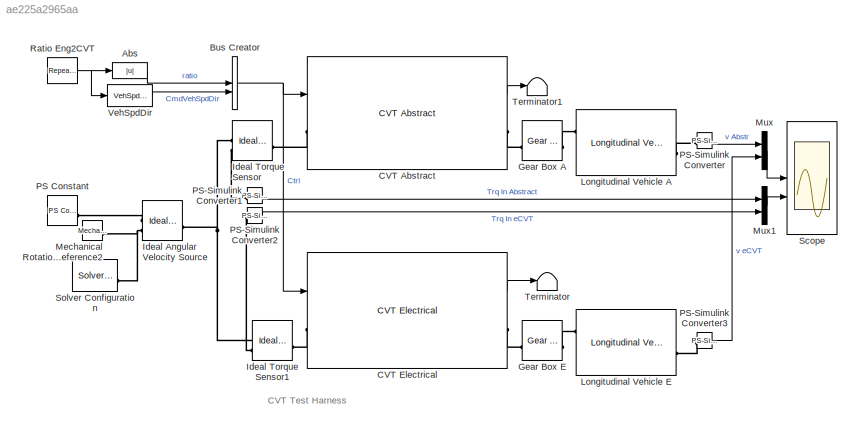
MODEL slx_ae225a2965aa
KIND model
CONFIG SolverName = VariableStepAuto
CONFIG StopTime = 200
BLOCK [Abs] Abs
  NameLocation = top
  SaturateOnIntegerOverflow = off
  ZeroCross = off
BLOCK [BusCreator] Bus Creator
  DisplayOption = bar
  InheritFromInputs = on
  Inputs = 2
BLOCK [Reference] CVT Abstract  REF=sm_tractor_row_crop_lib/CVT Abstract  (lib defined in slx_1aafa4fbb624)
  SourceBlock = sm_tractor_row_crop_lib/CVT Abstract
  SourceType = Continuously Variable Transmission (Abstract)
BLOCK [Reference] CVT Electrical  REF=sm_tractor_row_crop_lib/CVT Electrical  (lib defined in slx_1aafa4fbb624)
  SourceBlock = sm_tractor_row_crop_lib/CVT Electrical
  SourceType = Electrical Continuously Variable Transmission (eCVT)
BLOCK [Reference] Gear Box A  REF=fl_lib/Mechanical/Mechanisms/Gear Box
  SourceBlock = fl_lib/Mechanical/Mechanisms/Gear Box
  SourceType = Gear Box
BLOCK [Reference] Gear Box E  REF=fl_lib/Mechanical/Mechanisms/Gear Box
  SourceBlock = fl_lib/Mechanical/Mechanisms/Gear Box
  SourceType = Gear Box
BLOCK [Reference] Ideal Angular Velocity Source  REF=fl_lib/Mechanical/Mechanical Sources/Ideal Angular
Velocity Source
  SourceBlock = fl_lib/Mechanical/Mechanical Sources/Ideal Angular\nVelocity Source
  SourceType = Ideal Angular\nVelocity Source
BLOCK [Reference] Ideal Torque Sensor  REF=fl_lib/Mechanical/Mechanical Sensors/Ideal Torque Sensor
  SourceBlock = fl_lib/Mechanical/Mechanical Sensors/Ideal Torque Sensor
  SourceType = Ideal Torque Sensor
BLOCK [Reference] Ideal Torque Sensor1  REF=fl_lib/Mechanical/Mechanical Sensors/Ideal Torque Sensor
  SourceBlock = fl_lib/Mechanical/Mechanical Sensors/Ideal Torque Sensor
  SourceType = Ideal Torque Sensor
BLOCK [Reference] Longitudinal Vehicle A  REF=sdl_lib/Tires & Vehicles/Longitudinal Vehicle
  SourceBlock = sdl_lib/Tires & Vehicles/Longitudinal Vehicle
  SourceType = Longitudinal Vehicle
BLOCK [Reference] Longitudinal Vehicle E  REF=sdl_lib/Tires & Vehicles/Longitudinal Vehicle
  SourceBlock = sdl_lib/Tires & Vehicles/Longitudinal Vehicle
  SourceType = Longitudinal Vehicle
BLOCK [Reference] Mechanical Rotational Reference2  REF=fl_lib/Mechanical/Rotational Elements/Mechanical
Rotational Reference
  SourceBlock = fl_lib/Mechanical/Rotational Elements/Mechanical\nRotational Reference
  SourceType = Mechanical\nRotational Reference
BLOCK [Mux] Mux
  DisplayOption = bar
  Inputs = 2
BLOCK [Mux] Mux1
  DisplayOption = bar
  Inputs = 2
BLOCK [Reference] PS Constant  REF=fl_lib/Physical Signals/Sources/PS Constant
  SourceBlock = fl_lib/Physical Signals/Sources/PS Constant
  SourceType = PS Constant
BLOCK [Reference] PS-Simulink Converter  REF=nesl_utility/PS-Simulink
Converter
  SourceBlock = nesl_utility/PS-Simulink\nConverter
  SourceType = PS-Simulink\nConverter
BLOCK [Reference] PS-Simulink Converter1  REF=nesl_utility/PS-Simulink
Converter
  SourceBlock = nesl_utility/PS-Simulink\nConverter
  SourceType = PS-Simulink\nConverter
BLOCK [Reference] PS-Simulink Converter2  REF=nesl_utility/PS-Simulink
Converter
  SourceBlock = nesl_utility/PS-Simulink\nConverter
  SourceType = PS-Simulink\nConverter
BLOCK [Reference] PS-Simulink Converter3  REF=nesl_utility/PS-Simulink
Converter
  SourceBlock = nesl_utility/PS-Simulink\nConverter
  SourceType = PS-Simulink\nConverter
BLOCK [Reference] Ratio Eng2CVT  REF=simulink/Sources/Repeating
Sequence
  SourceBlock = simulink/Sources/Repeating\nSequence
  SourceType = Repeating table
BLOCK [Scope] Scope
  ActiveDisplayYMaximum = 18.16014
  ActiveDisplayYMinimum = -18.16022
  Floating = off
  GraphicalSettings = {"GraphicalSettings":{"LegacySettings":true,"Style":{"AxesScalingProperties":{"ScaleAxesLimitsAtStop":false},"Style":{"AxesColor":"[0 0 0]","ChannelNames":["",""],"ColorOrder":"[1 0.909803921568627 0.392156862745098;0.149019607843137 0.549019607843137 0.866666666666667;0.96078431372549 0.466666666666667 0.16078431372549;0.286274509803922 0.858823529411765 0.250980392156863;0.752941176470588 0.3607...<+770ch>
  LayoutDimensionsString = [2 1]
  MultipleDisplayCache = [{"MaxYLimMag":18.16022,"MaxYLimReal":18.16014,"MinYLimMag":0,"MinYLimReal":-18.16022,"PlotAsMagnitudePhase":false,"ShowGrid":true,"ShowLegend":true,"Title":"%<SignalLabel>","YLabel":""},{"MaxYLimMag":181.93363,"MaxYLimReal":83.1392,"MinYLimMag":0,"MinYLimReal":-250.11042,"PlotAsMagnitudePhase":false,"ShowGrid":true,"ShowLegend":true,"Title":"%<SignalLabel>","YLabel":""}]
  NumInputPorts = 2
  ShowLegend = on
  WasSavedAsWebScope = on
  WindowPosition = [1215 489 560 507]
BLOCK [Reference] Solver Configuration  REF=nesl_utility/Solver
Configuration
  SourceBlock = nesl_utility/Solver\nConfiguration
  SourceType = Solver\nConfiguration
BLOCK [Terminator] Terminator
BLOCK [Terminator] Terminator1
BLOCK [Reference] VehSpdDir  REF=sm_tractor_row_crop_lib/Controller/Desired Ratio Calc/VehSpdDir  (lib defined in slx_1aafa4fbb624)
  SourceBlock = sm_tractor_row_crop_lib/Controller/Desired Ratio Calc/VehSpdDir
  SourceType = SubSystem
ANNOTATION (root): CVT Test Harness
LINE Abs:1 -> Bus Creator:1
NET Bus Creator:1 -> CVT Abstract:1, CVT Electrical:1
LINE CVT Abstract:1 -> Terminator1:1
LINE CVT Electrical:1 -> Terminator:1
LINE Mux1:1 -> Scope:2
LINE Mux:1 -> Scope:1
LINE PS-Simulink Converter1:1 -> Mux1:1
LINE PS-Simulink Converter2:1 -> Mux1:2
LINE PS-Simulink Converter3:1 -> Mux:2
LINE PS-Simulink Converter:1 -> Mux:1
NET Ratio Eng2CVT:1 -> Abs:1, VehSpdDir:1
LINE VehSpdDir:1 -> Bus Creator:2
PLINE CVT Abstract:LConn1 -- Ideal Torque Sensor:LConn1
PLINE CVT Abstract:RConn1 -- Gear Box A:LConn1
PLINE CVT Electrical:LConn1 -- Ideal Torque Sensor1:LConn1
PLINE CVT Electrical:RConn1 -- Gear Box E:LConn1
PLINE Gear Box A:RConn1 -- Longitudinal Vehicle A:LConn1
PLINE Gear Box E:RConn1 -- Longitudinal Vehicle E:LConn1
PNET net1: Ideal Angular Velocity Source:LConn1 -- Ideal Torque Sensor1:RConn1 -- Ideal Torque Sensor:RConn1
PLINE Ideal Angular Velocity Source:RConn1 -- PS Constant:RConn1
PNET net2: Ideal Angular Velocity Source:RConn2 -- Mechanical Rotational Reference2:LConn1 -- Solver Configuration:RConn1
PLINE Ideal Torque Sensor1:RConn2 -- PS-Simulink Converter2:LConn1
PLINE Ideal Torque Sensor:RConn2 -- PS-Simulink Converter1:LConn1
PLINE Longitudinal Vehicle A:RConn1 -- PS-Simulink Converter:LConn1
PLINE Longitudinal Vehicle E:RConn1 -- PS-Simulink Converter3:LConn1
note: NET lines group one-source signal fan-out (src -> all destinations, sorted); 1:1 wires keep LINE; PNET lines group multi-terminal physical nets as a canonical sorted terminal list (undirected conserving connections); 2-terminal nets keep the pairwise PLINE form
